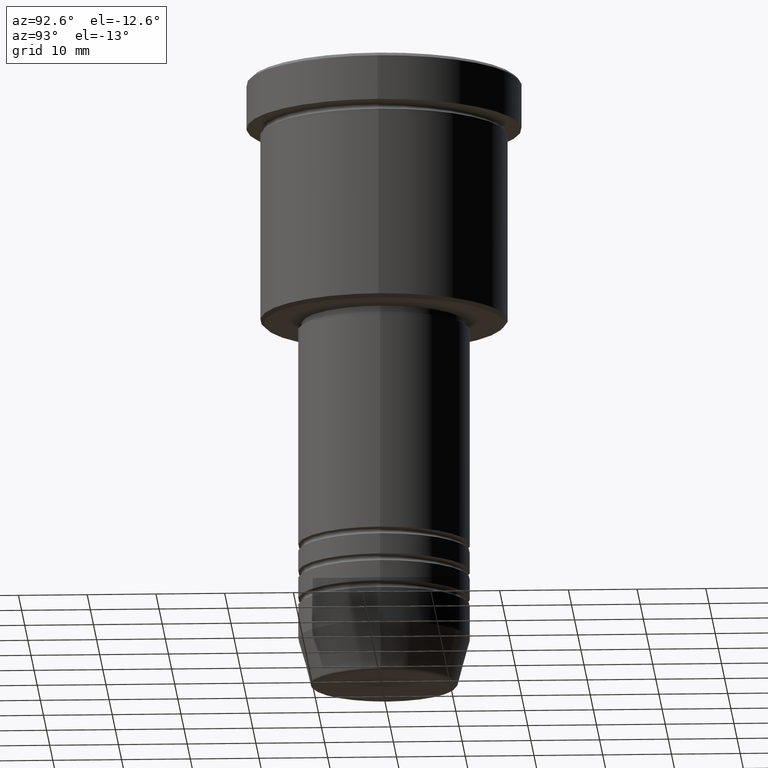
[diagram: clean part render]
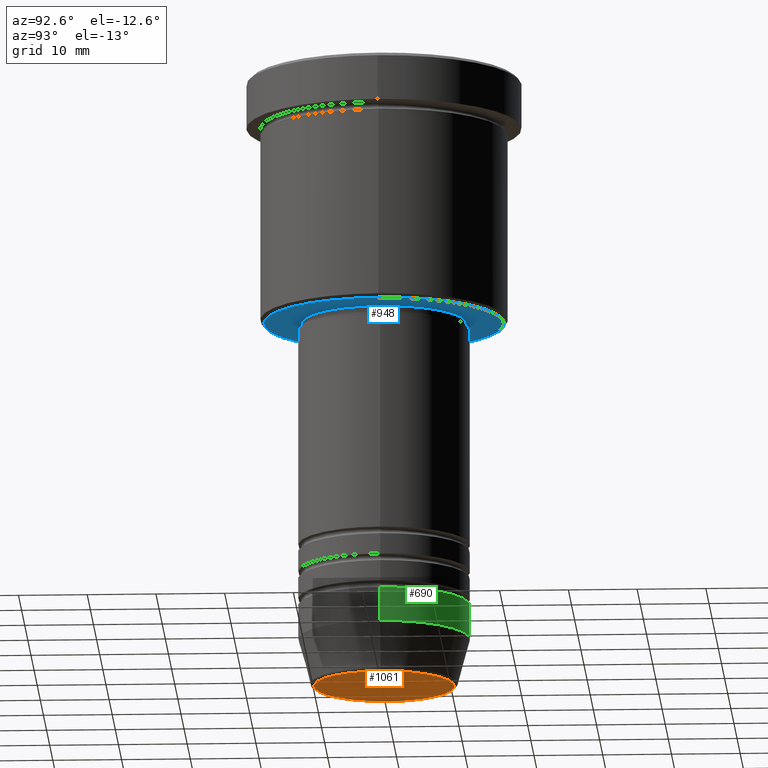
[diagram: same view with three faces highlighted in distinct colors, each labeled with its STEP entity id]
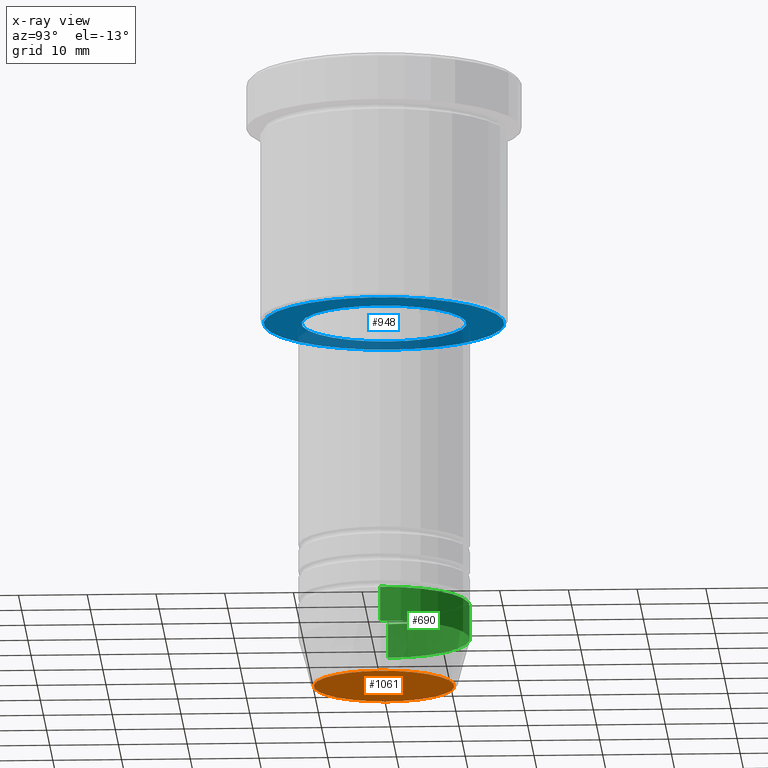
[diagram: x-ray of the same camera — body ghosted, the three highlighted faces saturated]
A machine part, auxiliary view with three faces highlighted in distinct colors.
The next image is the same camera in x-ray (body ghosted, the three faces saturated) — at least one of them is partly hidden behind the body in this view.
Their STEP definitions:

[orange] entity #1061 — the highlighted planar face has unit normal (0, -0, 1).
#45 = ORIENTED_EDGE ( 'NONE', *, *, #207, .T. ) ;
#207 = EDGE_CURVE ( 'NONE', #498, #902, #642, .T. ) ;
#217 = DIRECTION ( 'NONE',  ( 0.000000000000000000, -0.000000000000000000, 1.000000000000000000 ) ) ;
#231 = DIRECTION ( 'NONE',  ( 1.000000000000000000, 0.000000000000000000, 0.000000000000000000 ) ) ;
#235 = DIRECTION ( 'NONE',  ( 0.000000000000000000, 0.000000000000000000, -1.000000000000000000 ) ) ;
#245 = CIRCLE ( 'NONE', #783, 10.24069215899265473 ) ;
#322 = FACE_OUTER_BOUND ( 'NONE', #1148, .T. ) ;
#498 = VERTEX_POINT ( 'NONE', #1049 ) ;
#548 = CARTESIAN_POINT ( 'NONE',  ( 10.24069215899265473, 0.000000000000000000, -90.00000000000000000 ) ) ;
#585 = DIRECTION ( 'NONE',  ( 1.000000000000000000, 0.000000000000000000, 0.000000000000000000 ) ) ;
#602 = ORIENTED_EDGE ( 'NONE', *, *, #603, .T. ) ;
#603 = EDGE_CURVE ( 'NONE', #902, #498, #245, .T. ) ;
#642 = CIRCLE ( 'NONE', #943, 10.24069215899265473 ) ;
#662 = PLANE ( 'NONE',  #759 ) ;
#759 = AXIS2_PLACEMENT_3D ( 'NONE', #1115, #217, #585 ) ;
#770 = DIRECTION ( 'NONE',  ( 1.000000000000000000, 0.000000000000000000, 0.000000000000000000 ) ) ;
#783 = AXIS2_PLACEMENT_3D ( 'NONE', #1135, #235, #231 ) ;
#847 = CARTESIAN_POINT ( 'NONE',  ( 0.000000000000000000, 0.000000000000000000, -90.00000000000000000 ) ) ;
#902 = VERTEX_POINT ( 'NONE', #548 ) ;
#943 = AXIS2_PLACEMENT_3D ( 'NONE', #847, #1068, #770 ) ;
#1049 = CARTESIAN_POINT ( 'NONE',  ( -10.24069215899265473, 1.283696036640841981E-15, -90.00000000000000000 ) ) ;
#1061 = ADVANCED_FACE ( 'NONE', ( #322 ), #662, .F. ) ;
#1068 = DIRECTION ( 'NONE',  ( 0.000000000000000000, 0.000000000000000000, -1.000000000000000000 ) ) ;
#1115 = CARTESIAN_POINT ( 'NONE',  ( 0.000000000000000000, 0.000000000000000000, -90.00000000000000000 ) ) ;
#1135 = CARTESIAN_POINT ( 'NONE',  ( 0.000000000000000000, 0.000000000000000000, -90.00000000000000000 ) ) ;
#1148 = EDGE_LOOP ( 'NONE', ( #602, #45 ) ) ;

[blue] entity #948 — the highlighted planar face has unit normal (0, 0, -1).
#7 = PLANE ( 'NONE',  #664 ) ;
#79 = EDGE_CURVE ( 'NONE', #958, #1101, #862, .T. ) ;
#133 = AXIS2_PLACEMENT_3D ( 'NONE', #1060, #972, #530 ) ;
#137 = DIRECTION ( 'NONE',  ( 0.000000000000000000, 0.000000000000000000, -1.000000000000000000 ) ) ;
#189 = AXIS2_PLACEMENT_3D ( 'NONE', #557, #286, #470 ) ;
#196 = CARTESIAN_POINT ( 'NONE',  ( 0.000000000000000000, 18.00000000000000000, -36.00000000000000000 ) ) ;
#234 = CARTESIAN_POINT ( 'NONE',  ( 12.00000000000000000, 0.000000000000000000, -36.00000000000000000 ) ) ;
#236 = CARTESIAN_POINT ( 'NONE',  ( 0.000000000000000000, 0.000000000000000000, -36.00000000000000000 ) ) ;
#286 = DIRECTION ( 'NONE',  ( 0.000000000000000000, 0.000000000000000000, -1.000000000000000000 ) ) ;
#300 = DIRECTION ( 'NONE',  ( 0.000000000000000000, 0.000000000000000000, -1.000000000000000000 ) ) ;
#326 = EDGE_CURVE ( 'NONE', #1101, #958, #390, .T. ) ;
#390 = CIRCLE ( 'NONE', #189, 17.49999999999996803 ) ;
#418 = DIRECTION ( 'NONE',  ( -1.000000000000000000, 0.000000000000000000, 0.000000000000000000 ) ) ;
#463 = AXIS2_PLACEMENT_3D ( 'NONE', #236, #137, #418 ) ;
#470 = DIRECTION ( 'NONE',  ( -1.000000000000000000, 0.000000000000000000, 0.000000000000000000 ) ) ;
#511 = VERTEX_POINT ( 'NONE', #234 ) ;
#527 = EDGE_LOOP ( 'NONE', ( #534, #712 ) ) ;
#530 = DIRECTION ( 'NONE',  ( 1.000000000000000000, 0.000000000000000000, 0.000000000000000000 ) ) ;
#534 = ORIENTED_EDGE ( 'NONE', *, *, #79, .T. ) ;
#544 = CARTESIAN_POINT ( 'NONE',  ( 17.49999999999996803, 0.000000000000000000, -36.00000000000000000 ) ) ;
#554 = FACE_BOUND ( 'NONE', #1155, .T. ) ;
#557 = CARTESIAN_POINT ( 'NONE',  ( 0.000000000000000000, 0.000000000000000000, -36.00000000000000000 ) ) ;
#607 = ORIENTED_EDGE ( 'NONE', *, *, #814, .T. ) ;
#619 = ORIENTED_EDGE ( 'NONE', *, *, #714, .T. ) ;
#624 = AXIS2_PLACEMENT_3D ( 'NONE', #985, #681, #876 ) ;
#633 = DIRECTION ( 'NONE',  ( -1.000000000000000000, 0.000000000000000000, -0.000000000000000000 ) ) ;
#664 = AXIS2_PLACEMENT_3D ( 'NONE', #196, #300, #633 ) ;
#681 = DIRECTION ( 'NONE',  ( -0.000000000000000000, -0.000000000000000000, 1.000000000000000000 ) ) ;
#712 = ORIENTED_EDGE ( 'NONE', *, *, #326, .T. ) ;
#714 = EDGE_CURVE ( 'NONE', #995, #511, #1134, .T. ) ;
#764 = CARTESIAN_POINT ( 'NONE',  ( -17.49999999999996803, 2.173748068486549669E-15, -36.00000000000000000 ) ) ;
#814 = EDGE_CURVE ( 'NONE', #511, #995, #1002, .T. ) ;
#862 = CIRCLE ( 'NONE', #463, 17.49999999999996803 ) ;
#876 = DIRECTION ( 'NONE',  ( 1.000000000000000000, 0.000000000000000000, 0.000000000000000000 ) ) ;
#948 = ADVANCED_FACE ( 'NONE', ( #1105, #554 ), #7, .T. ) ;
#958 = VERTEX_POINT ( 'NONE', #544 ) ;
#972 = DIRECTION ( 'NONE',  ( -0.000000000000000000, -0.000000000000000000, 1.000000000000000000 ) ) ;
#985 = CARTESIAN_POINT ( 'NONE',  ( 0.000000000000000000, 0.000000000000000000, -36.00000000000000000 ) ) ;
#995 = VERTEX_POINT ( 'NONE', #1098 ) ;
#1002 = CIRCLE ( 'NONE', #624, 12.00000000000000000 ) ;
#1060 = CARTESIAN_POINT ( 'NONE',  ( 0.000000000000000000, 0.000000000000000000, -36.00000000000000000 ) ) ;
#1098 = CARTESIAN_POINT ( 'NONE',  ( -12.00000000000000000, 1.469576158976823947E-15, -36.00000000000000000 ) ) ;
#1101 = VERTEX_POINT ( 'NONE', #764 ) ;
#1105 = FACE_OUTER_BOUND ( 'NONE', #527, .T. ) ;
#1134 = CIRCLE ( 'NONE', #133, 12.00000000000000000 ) ;
#1155 = EDGE_LOOP ( 'NONE', ( #607, #619 ) ) ;

[green] entity #690 — the highlighted cylindrical surface (partial cylindrical patch) has radius 12.5 mm, axis along (-0, -0, 1).
#29 = CARTESIAN_POINT ( 'NONE',  ( 0.000000000000000000, 0.000000000000000000, -82.99999999999998579 ) ) ;
#111 = CARTESIAN_POINT ( 'NONE',  ( 12.50000000000000000, 0.000000000000000000, -82.99999999999998579 ) ) ;
#161 = LINE ( 'NONE', #691, #758 ) ;
#178 = EDGE_CURVE ( 'NONE', #973, #600, #227, .T. ) ;
#180 = ORIENTED_EDGE ( 'NONE', *, *, #748, .T. ) ;
#209 = CARTESIAN_POINT ( 'NONE',  ( 0.000000000000000000, 0.000000000000000000, -77.99999999999998579 ) ) ;
#227 = CIRCLE ( 'NONE', #613, 12.50000000000000000 ) ;
#250 = ORIENTED_EDGE ( 'NONE', *, *, #331, .F. ) ;
#283 = AXIS2_PLACEMENT_3D ( 'NONE', #209, #920, #832 ) ;
#290 = ORIENTED_EDGE ( 'NONE', *, *, #178, .T. ) ;
#331 = EDGE_CURVE ( 'NONE', #1063, #781, #465, .T. ) ;
#355 = LINE ( 'NONE', #518, #609 ) ;
#375 = AXIS2_PLACEMENT_3D ( 'NONE', #416, #656, #1026 ) ;
#416 = CARTESIAN_POINT ( 'NONE',  ( 0.000000000000000000, 0.000000000000000000, 0.000000000000000000 ) ) ;
#465 = CIRCLE ( 'NONE', #283, 12.50000000000000000 ) ;
#502 = FACE_OUTER_BOUND ( 'NONE', #816, .T. ) ;
#518 = CARTESIAN_POINT ( 'NONE',  ( -12.50000000000000000, 1.530808498934191521E-15, 0.000000000000000000 ) ) ;
#581 = CARTESIAN_POINT ( 'NONE',  ( 12.50000000000000000, 0.000000000000000000, -77.99999999999998579 ) ) ;
#600 = VERTEX_POINT ( 'NONE', #757 ) ;
#609 = VECTOR ( 'NONE', #1166, 1000.000000000000000 ) ;
#613 = AXIS2_PLACEMENT_3D ( 'NONE', #29, #1109, #1036 ) ;
#614 = DIRECTION ( 'NONE',  ( -0.000000000000000000, -0.000000000000000000, 1.000000000000000000 ) ) ;
#656 = DIRECTION ( 'NONE',  ( -0.000000000000000000, -0.000000000000000000, 1.000000000000000000 ) ) ;
#690 = ADVANCED_FACE ( 'NONE', ( #502 ), #1125, .T. ) ;
#691 = CARTESIAN_POINT ( 'NONE',  ( 12.50000000000000000, 0.000000000000000000, 0.000000000000000000 ) ) ;
#698 = CARTESIAN_POINT ( 'NONE',  ( -12.50000000000000000, 1.530808498934191521E-15, -77.99999999999998579 ) ) ;
#700 = ORIENTED_EDGE ( 'NONE', *, *, #736, .F. ) ;
#736 = EDGE_CURVE ( 'NONE', #973, #1063, #161, .T. ) ;
#748 = EDGE_CURVE ( 'NONE', #600, #781, #355, .T. ) ;
#757 = CARTESIAN_POINT ( 'NONE',  ( -12.50000000000000000, 1.530808498934191521E-15, -82.99999999999998579 ) ) ;
#758 = VECTOR ( 'NONE', #614, 1000.000000000000000 ) ;
#781 = VERTEX_POINT ( 'NONE', #698 ) ;
#816 = EDGE_LOOP ( 'NONE', ( #290, #180, #250, #700 ) ) ;
#832 = DIRECTION ( 'NONE',  ( 1.000000000000000000, 0.000000000000000000, 0.000000000000000000 ) ) ;
#920 = DIRECTION ( 'NONE',  ( -0.000000000000000000, -0.000000000000000000, 1.000000000000000000 ) ) ;
#973 = VERTEX_POINT ( 'NONE', #111 ) ;
#1026 = DIRECTION ( 'NONE',  ( 1.000000000000000000, 0.000000000000000000, 0.000000000000000000 ) ) ;
#1036 = DIRECTION ( 'NONE',  ( 1.000000000000000000, 0.000000000000000000, 0.000000000000000000 ) ) ;
#1063 = VERTEX_POINT ( 'NONE', #581 ) ;
#1109 = DIRECTION ( 'NONE',  ( -0.000000000000000000, -0.000000000000000000, 1.000000000000000000 ) ) ;
#1125 = CYLINDRICAL_SURFACE ( 'NONE', #375, 12.50000000000000000 ) ;
#1166 = DIRECTION ( 'NONE',  ( -0.000000000000000000, -0.000000000000000000, 1.000000000000000000 ) ) ;